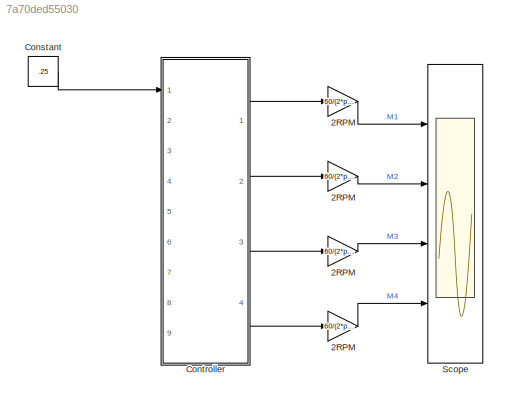
MODEL slx_7a70ded55030
KIND model
CONFIG AbsTol = auto
CONFIG EnableMultiTasking = off
CONFIG FixedStep = 0.001
CONFIG MaxStep = 1e-4
CONFIG MinStep = 1e-5
CONFIG RelTol = 1e-4
CONFIG SampleTimeConstraint = Unconstrained
CONFIG Solver = VariableStepAuto
CONFIG SolverName = VariableStepAuto
CONFIG StartTime = 0
CONFIG StopTime = 20
BLOCK [Gain] 2RPM
  Gain = 60/(2*pi)
  OutDataTypeStr = Inherit: Inherit via internal rule
  ParamDataTypeStr = Inherit: Inherit via internal rule
  SaturateOnIntegerOverflow = off
BLOCK [Gain] 2RPM 
  Gain = 60/(2*pi)
  OutDataTypeStr = Inherit: Inherit via internal rule
  ParamDataTypeStr = Inherit: Inherit via internal rule
  SaturateOnIntegerOverflow = off
BLOCK [Gain] 2RPM  
  Gain = 60/(2*pi)
  OutDataTypeStr = Inherit: Inherit via internal rule
  ParamDataTypeStr = Inherit: Inherit via internal rule
  SaturateOnIntegerOverflow = off
BLOCK [Gain] 2RPM    
  Gain = 60/(2*pi)
  OutDataTypeStr = Inherit: Inherit via internal rule
  ParamDataTypeStr = Inherit: Inherit via internal rule
  SaturateOnIntegerOverflow = off
BLOCK [Constant] Constant
  Value = .25
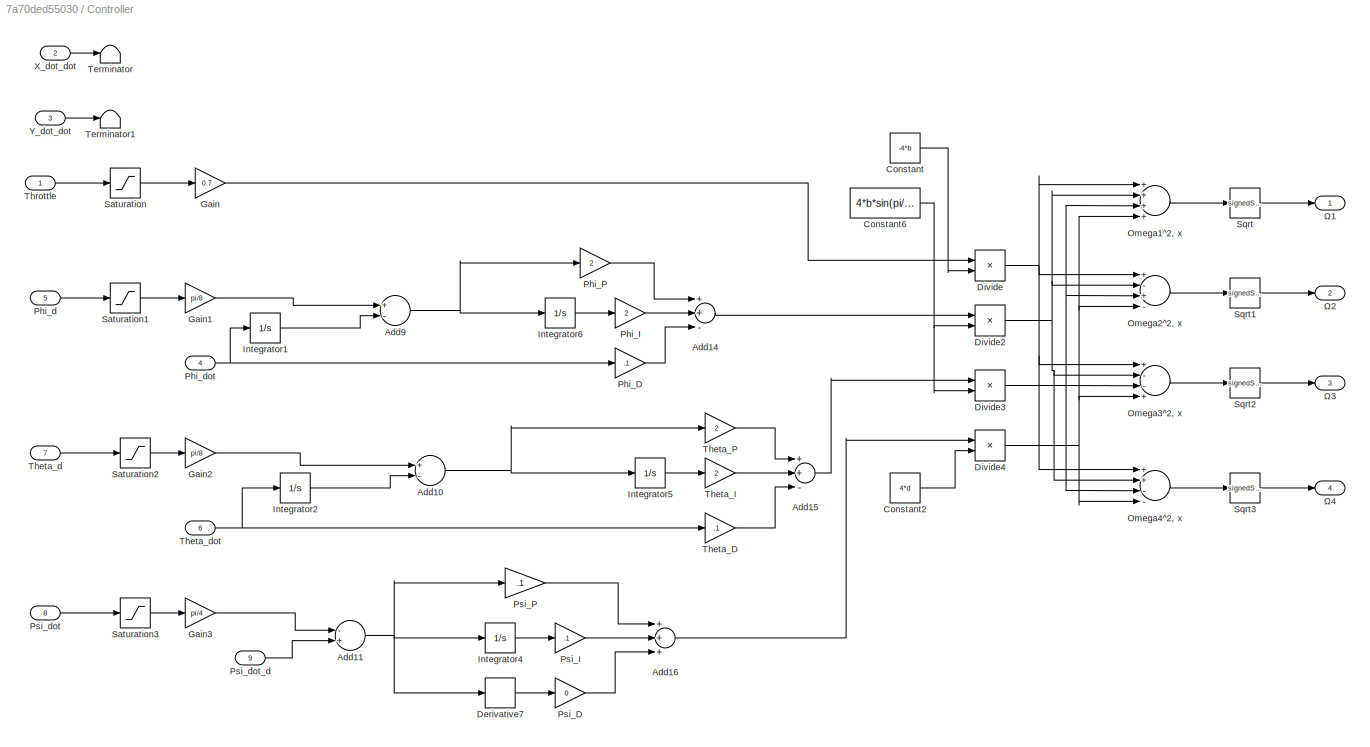
BLOCK [SubSystem] Controller
  Ports = [9, 4]
  RequestExecContextInheritance = off
  Variant = off
BLOCK [Sum] Controller/Add10
  InputSameDT = off
  Inputs = +-
  OutDataTypeStr = Inherit: Inherit via internal rule
  Ports = [2, 1]
  SaturateOnIntegerOverflow = off
BLOCK [Sum] Controller/Add11
  InputSameDT = off
  Inputs = -+
  OutDataTypeStr = Inherit: Inherit via internal rule
  Ports = [2, 1]
  SaturateOnIntegerOverflow = off
BLOCK [Sum] Controller/Add14
  InputSameDT = off
  Inputs = ++-
  OutDataTypeStr = Inherit: Inherit via internal rule
  Ports = [3, 1]
  SaturateOnIntegerOverflow = off
BLOCK [Sum] Controller/Add15
  InputSameDT = off
  Inputs = ++-
  OutDataTypeStr = Inherit: Inherit via internal rule
  Ports = [3, 1]
  SaturateOnIntegerOverflow = off
BLOCK [Sum] Controller/Add16
  InputSameDT = off
  Inputs = +++
  OutDataTypeStr = Inherit: Inherit via internal rule
  Ports = [3, 1]
  SaturateOnIntegerOverflow = off
BLOCK [Sum] Controller/Add9
  InputSameDT = off
  Inputs = +-
  OutDataTypeStr = Inherit: Inherit via internal rule
  Ports = [2, 1]
  SaturateOnIntegerOverflow = off
BLOCK [Constant] Controller/Constant
  Value = -4*b
BLOCK [Constant] Controller/Constant2
  Value = 4*d
BLOCK [Constant] Controller/Constant6
  Value = 4*b*sin(pi/4)*l
BLOCK [Derivative] Controller/Derivative7
BLOCK [Product] Controller/Divide
  InputSameDT = off
  Inputs = */
  OutDataTypeStr = Inherit: Inherit via internal rule
  Ports = [2, 1]
  RndMeth = Floor
  SaturateOnIntegerOverflow = off
BLOCK [Product] Controller/Divide2
  InputSameDT = off
  Inputs = */
  OutDataTypeStr = Inherit: Inherit via internal rule
  Ports = [2, 1]
  RndMeth = Floor
  SaturateOnIntegerOverflow = off
BLOCK [Product] Controller/Divide3
  InputSameDT = off
  Inputs = */
  OutDataTypeStr = Inherit: Inherit via internal rule
  Ports = [2, 1]
  RndMeth = Floor
  SaturateOnIntegerOverflow = off
BLOCK [Product] Controller/Divide4
  InputSameDT = off
  Inputs = */
  OutDataTypeStr = Inherit: Inherit via internal rule
  Ports = [2, 1]
  RndMeth = Floor
  SaturateOnIntegerOverflow = off
BLOCK [Gain] Controller/Gain
  Gain = 0.7
  OutDataTypeStr = Inherit: Inherit via internal rule
  ParamDataTypeStr = Inherit: Inherit via internal rule
  SaturateOnIntegerOverflow = off
BLOCK [Gain] Controller/Gain1
  Gain = pi/8
  OutDataTypeStr = Inherit: Inherit via internal rule
  ParamDataTypeStr = Inherit: Inherit via internal rule
  SaturateOnIntegerOverflow = off
BLOCK [Gain] Controller/Gain2
  Gain = pi/8
  OutDataTypeStr = Inherit: Inherit via internal rule
  ParamDataTypeStr = Inherit: Inherit via internal rule
  SaturateOnIntegerOverflow = off
BLOCK [Gain] Controller/Gain3
  Gain = pi/4
  OutDataTypeStr = Inherit: Inherit via internal rule
  ParamDataTypeStr = Inherit: Inherit via internal rule
  SaturateOnIntegerOverflow = off
BLOCK [Integrator] Controller/Integrator1
  Ports = [1, 1]
  WrapState = on
BLOCK [Integrator] Controller/Integrator2
  Ports = [1, 1]
  WrapState = on
BLOCK [Integrator] Controller/Integrator4
  Ports = [1, 1]
BLOCK [Integrator] Controller/Integrator5
  Ports = [1, 1]
BLOCK [Integrator] Controller/Integrator6
  Ports = [1, 1]
BLOCK [Sum] Controller/Omega1^2, x
  InputSameDT = off
  Inputs = ++++
  OutDataTypeStr = Inherit: Inherit via internal rule
  Ports = [4, 1]
  SaturateOnIntegerOverflow = off
BLOCK [Sum] Controller/Omega2^2, x
  InputSameDT = off
  Inputs = +-+-
  OutDataTypeStr = Inherit: Inherit via internal rule
  Ports = [4, 1]
  SaturateOnIntegerOverflow = off
BLOCK [Sum] Controller/Omega3^2, x
  InputSameDT = off
  Inputs = +--+
  OutDataTypeStr = Inherit: Inherit via internal rule
  Ports = [4, 1]
  SaturateOnIntegerOverflow = off
BLOCK [Sum] Controller/Omega4^2, x
  InputSameDT = off
  Inputs = ++--
  OutDataTypeStr = Inherit: Inherit via internal rule
  Ports = [4, 1]
  SaturateOnIntegerOverflow = off
BLOCK [Gain] Controller/Phi_D
  Gain = .1
  OutDataTypeStr = Inherit: Inherit via internal rule
  ParamDataTypeStr = Inherit: Inherit via internal rule
  SaturateOnIntegerOverflow = off
BLOCK [Gain] Controller/Phi_I
  Gain = 2
  OutDataTypeStr = Inherit: Inherit via internal rule
  ParamDataTypeStr = Inherit: Inherit via internal rule
  SaturateOnIntegerOverflow = off
BLOCK [Gain] Controller/Phi_P
  Gain = 2
  OutDataTypeStr = Inherit: Inherit via internal rule
  ParamDataTypeStr = Inherit: Inherit via internal rule
  SaturateOnIntegerOverflow = off
BLOCK [Inport] Controller/Phi_d
  IconDisplay = Port number
  Port = 5
BLOCK [Inport] Controller/Phi_dot
  IconDisplay = Port number
  Port = 4
BLOCK [Gain] Controller/Psi_D
  Gain = 0
  OutDataTypeStr = Inherit: Inherit via internal rule
  ParamDataTypeStr = Inherit: Inherit via internal rule
  SaturateOnIntegerOverflow = off
BLOCK [Gain] Controller/Psi_I
  Gain = .1
  OutDataTypeStr = Inherit: Inherit via internal rule
  ParamDataTypeStr = Inherit: Inherit via internal rule
  SaturateOnIntegerOverflow = off
BLOCK [Gain] Controller/Psi_P
  Gain = .1
  OutDataTypeStr = Inherit: Inherit via internal rule
  ParamDataTypeStr = Inherit: Inherit via internal rule
  SaturateOnIntegerOverflow = off
BLOCK [Inport] Controller/Psi_dot
  IconDisplay = Port number
  Port = 8
BLOCK [Inport] Controller/Psi_dot_d
  IconDisplay = Port number
  Port = 9
BLOCK [Saturate] Controller/Saturation
  InputPortMap = u0
  LowerLimit = 0
  Ports = [1, 1]
  UpperLimit = 1
BLOCK [Saturate] Controller/Saturation1
  InputPortMap = u0
  LowerLimit = -1
  Ports = [1, 1]
  UpperLimit = 1
BLOCK [Saturate] Controller/Saturation2
  InputPortMap = u0
  LowerLimit = -1
  Ports = [1, 1]
  UpperLimit = 1
BLOCK [Saturate] Controller/Saturation3
  InputPortMap = u0
  LowerLimit = -1
  Ports = [1, 1]
  UpperLimit = 1
BLOCK [Sqrt] Controller/Sqrt
  Operator = signedSqrt
BLOCK [Sqrt] Controller/Sqrt1
  Operator = signedSqrt
BLOCK [Sqrt] Controller/Sqrt2
  Operator = signedSqrt
BLOCK [Sqrt] Controller/Sqrt3
  Operator = signedSqrt
BLOCK [Terminator] Controller/Terminator
BLOCK [Terminator] Controller/Terminator1
BLOCK [Gain] Controller/Theta_D
  Gain = .1
  OutDataTypeStr = Inherit: Inherit via internal rule
  ParamDataTypeStr = Inherit: Inherit via internal rule
  SaturateOnIntegerOverflow = off
BLOCK [Gain] Controller/Theta_I
  Gain = 2
  OutDataTypeStr = Inherit: Inherit via internal rule
  ParamDataTypeStr = Inherit: Inherit via internal rule
  SaturateOnIntegerOverflow = off
BLOCK [Gain] Controller/Theta_P
  Gain = 2
  OutDataTypeStr = Inherit: Inherit via internal rule
  ParamDataTypeStr = Inherit: Inherit via internal rule
  SaturateOnIntegerOverflow = off
BLOCK [Inport] Controller/Theta_d
  IconDisplay = Port number
  Port = 7
BLOCK [Inport] Controller/Theta_dot
  IconDisplay = Port number
  Port = 6
BLOCK [Inport] Controller/Throttle
  IconDisplay = Port number
BLOCK [Inport] Controller/X_dot_dot
  IconDisplay = Port number
  Port = 2
BLOCK [Inport] Controller/Y_dot_dot
  IconDisplay = Port number
  Port = 3
BLOCK [Outport] Controller/Ω1
  IconDisplay = Port number
BLOCK [Outport] Controller/Ω2
  IconDisplay = Port number
  Port = 2
BLOCK [Outport] Controller/Ω3
  IconDisplay = Port number
  Port = 3
BLOCK [Outport] Controller/Ω4
  IconDisplay = Port number
  Port = 4
BLOCK [Scope] Scope
  NumInputPorts = 4
  Ports = [4]
  ScopeSpecificationString = Simulink.scopes.TimeScopeBlockCfg('CurrentConfiguration', extmgr.ConfigurationSet(extmgr.Configuration('Core','General UI',true),extmgr.Configuration('Core','Source UI',true),extmgr.Configuration('Sources','WiredSimulink',true),extmgr.Configuration('Visuals','Time Domain',true,'SerializedDisplays',{struct('MinYLimReal','8674.43188','MaxYLimReal','28674.43188','YLabelReal','','MinYLimMag','8674.431...<+1393ch>
LINE 2RPM    :1 -> Scope:4
LINE 2RPM  :1 -> Scope:3
LINE 2RPM :1 -> Scope:2
LINE 2RPM:1 -> Scope:1
LINE Constant:1 -> Controller:1
NET Controller/Add10:1 -> Controller/Integrator5:1, Controller/Theta_P:1
NET Controller/Add11:1 -> Controller/Derivative7:1, Controller/Integrator4:1, Controller/Psi_P:1
LINE Controller/Add14:1 -> Controller/Divide2:1
LINE Controller/Add15:1 -> Controller/Divide3:1
LINE Controller/Add16:1 -> Controller/Divide4:1
NET Controller/Add9:1 -> Controller/Integrator6:1, Controller/Phi_P:1
LINE Controller/Constant2:1 -> Controller/Divide4:2
NET Controller/Constant6:1 -> Controller/Divide2:2, Controller/Divide3:2
LINE Controller/Constant:1 -> Controller/Divide:2
LINE Controller/Derivative7:1 -> Controller/Psi_D:1
NET Controller/Divide2:1 -> Controller/Omega1^2, x:2, Controller/Omega2^2, x:2, Controller/Omega3^2, x:2, Controller/Omega4^2, x:2
NET Controller/Divide3:1 -> Controller/Omega1^2, x:3, Controller/Omega2^2, x:3, Controller/Omega3^2, x:3, Controller/Omega4^2, x:3
NET Controller/Divide4:1 -> Controller/Omega1^2, x:4, Controller/Omega2^2, x:4, Controller/Omega3^2, x:4, Controller/Omega4^2, x:4
NET Controller/Divide:1 -> Controller/Omega1^2, x:1, Controller/Omega2^2, x:1, Controller/Omega3^2, x:1, Controller/Omega4^2, x:1
LINE Controller/Gain1:1 -> Controller/Add9:1
LINE Controller/Gain2:1 -> Controller/Add10:1
LINE Controller/Gain3:1 -> Controller/Add11:1
LINE Controller/Gain:1 -> Controller/Divide:1
LINE Controller/Integrator1:1 -> Controller/Add9:2
LINE Controller/Integrator2:1 -> Controller/Add10:2
LINE Controller/Integrator4:1 -> Controller/Psi_I:1
LINE Controller/Integrator5:1 -> Controller/Theta_I:1
LINE Controller/Integrator6:1 -> Controller/Phi_I:1
LINE Controller/Omega1^2, x:1 -> Controller/Sqrt:1
LINE Controller/Omega2^2, x:1 -> Controller/Sqrt1:1
LINE Controller/Omega3^2, x:1 -> Controller/Sqrt2:1
LINE Controller/Omega4^2, x:1 -> Controller/Sqrt3:1
LINE Controller/Phi_D:1 -> Controller/Add14:3
LINE Controller/Phi_I:1 -> Controller/Add14:2
LINE Controller/Phi_P:1 -> Controller/Add14:1
LINE Controller/Phi_d:1 -> Controller/Saturation1:1
NET Controller/Phi_dot:1 -> Controller/Integrator1:1, Controller/Phi_D:1
LINE Controller/Psi_D:1 -> Controller/Add16:3
LINE Controller/Psi_I:1 -> Controller/Add16:2
LINE Controller/Psi_P:1 -> Controller/Add16:1
LINE Controller/Psi_dot:1 -> Controller/Saturation3:1
LINE Controller/Psi_dot_d:1 -> Controller/Add11:2
LINE Controller/Saturation1:1 -> Controller/Gain1:1
LINE Controller/Saturation2:1 -> Controller/Gain2:1
LINE Controller/Saturation3:1 -> Controller/Gain3:1
LINE Controller/Saturation:1 -> Controller/Gain:1
LINE Controller/Sqrt1:1 -> Controller/Ω2:1
LINE Controller/Sqrt2:1 -> Controller/Ω3:1
LINE Controller/Sqrt3:1 -> Controller/Ω4:1
LINE Controller/Sqrt:1 -> Controller/Ω1:1
LINE Controller/Theta_D:1 -> Controller/Add15:3
LINE Controller/Theta_I:1 -> Controller/Add15:2
LINE Controller/Theta_P:1 -> Controller/Add15:1
LINE Controller/Theta_d:1 -> Controller/Saturation2:1
NET Controller/Theta_dot:1 -> Controller/Integrator2:1, Controller/Theta_D:1
LINE Controller/Throttle:1 -> Controller/Saturation:1
LINE Controller/X_dot_dot:1 -> Controller/Terminator:1
LINE Controller/Y_dot_dot:1 -> Controller/Terminator1:1
LINE Controller:1 -> 2RPM:1
LINE Controller:2 -> 2RPM :1
LINE Controller:3 -> 2RPM  :1
LINE Controller:4 -> 2RPM    :1
note: NET lines group one-source signal fan-out (src -> all destinations, sorted); 1:1 wires keep LINE
